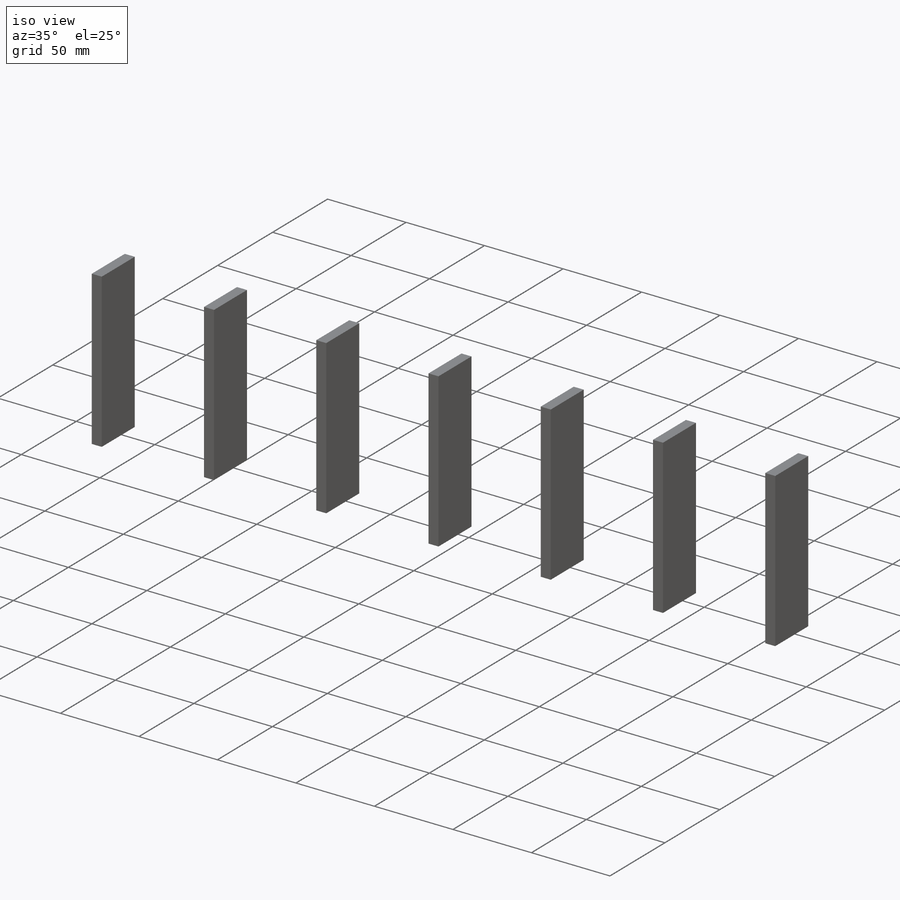
[diagram: iso view]
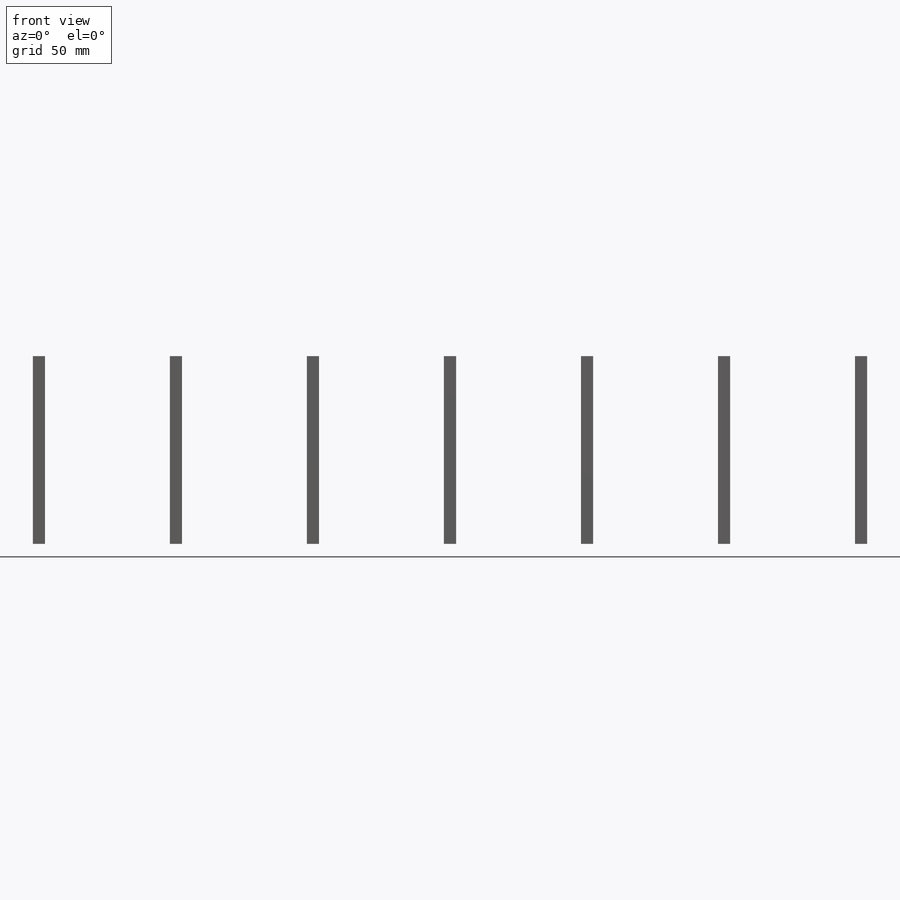
[diagram: front view]
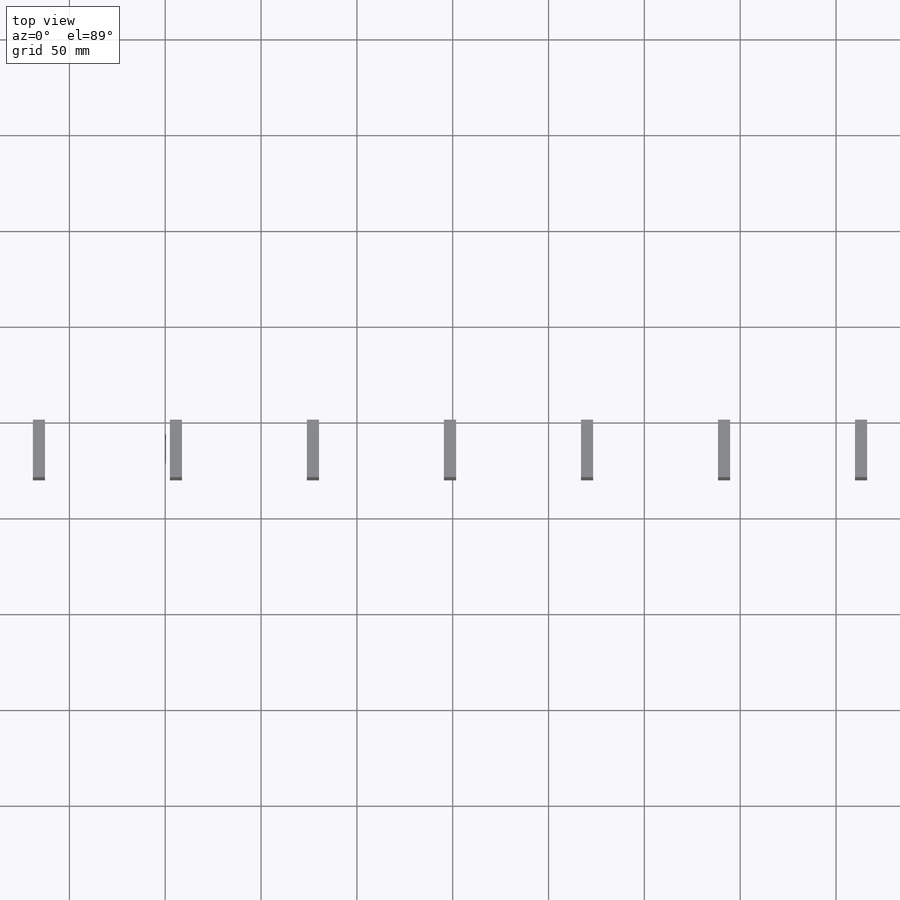
[diagram: top view]
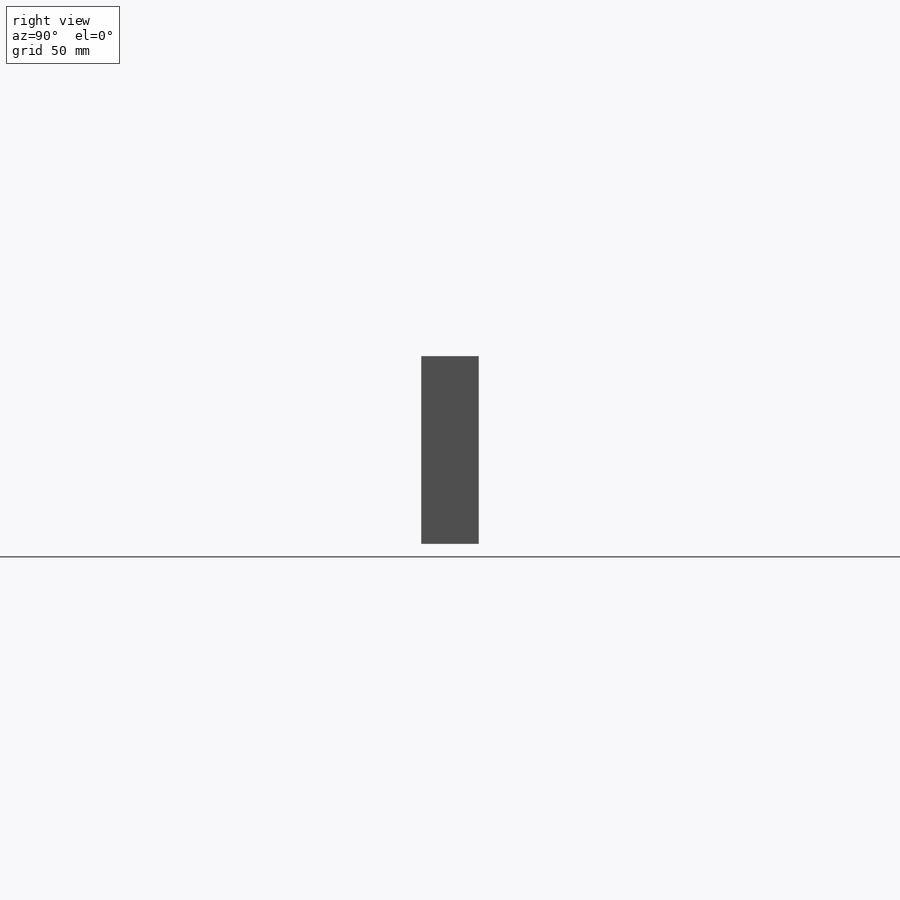
[diagram: right view]
SOLIDWORKS PART (.sldprt)
format: sldprt  version: not decoded by parser v0  size: 305,152 bytes
history: native  units: mm
features: sketch x5, cut_extrude x4, material x1, extrude x1 (+11 scaffold rows collapsed)
feature tree (22):
  scaffold x11  (default folders/planes/origin — collapsed)
  material  "Material <not specified>"
  sketch  "Sketch2"  dims[c1.D1=6.35mm c2.D1=7.0]
  extrude  "Boss-Extrude1"  Depth=31.75mm
  sketch  "Sketch3"  dims[c1.D1=~10.323179mm c2.D1=7.0]
  cut_extrude  "Cut-Extrude1"  Depth=10mm
  sketch  "Sketch4"  dims[c1.D1=~13.48155mm c2.D1=7.0]
  cut_extrude  "Cut-Extrude2"  Depth=10mm
  sketch  "Sketch5"  dims[D1=~3.041441mm]
  cut_extrude  "Cut-Extrude3"  [1 undecoded]
  sketch  "Sketch6"  dims[D1=3.556mm]
  cut_extrude  "Cut-Extrude4"  [1 undecoded]
decode coverage: 8 of 10 modeling features carry decoded parameters
note: ~ marks probable driven/reference dimensions
note: 2 parameter values undecoded
note: suppression state not decoded; provenance and decode notes live in map.json
